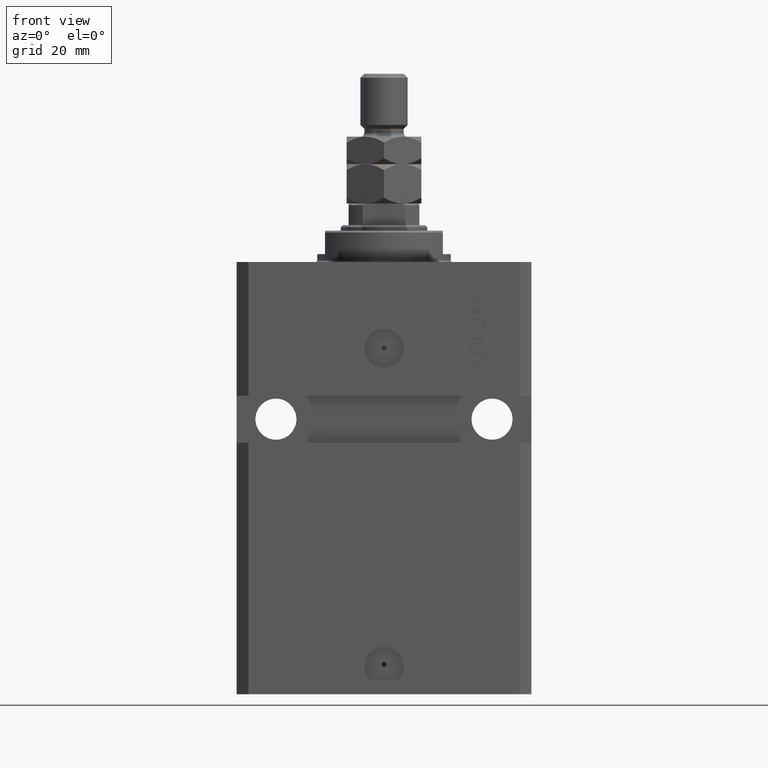
[diagram: clean part render]
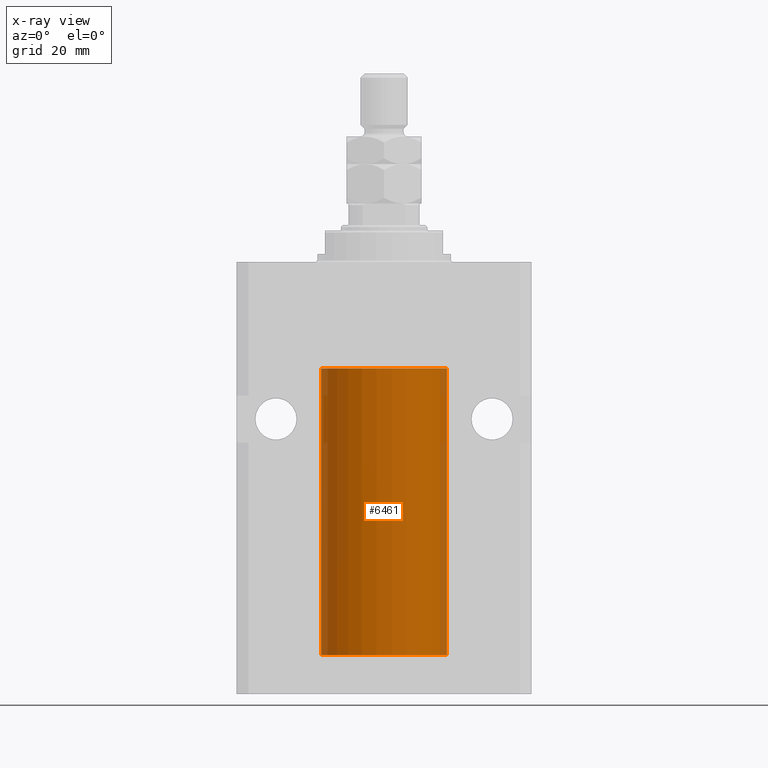
[diagram: x-ray — body ghosted, one internal face saturated and labeled with its STEP entity id]
A machine part, front view, then the same camera in x-ray: the body is ghosted and one INTERNAL B-rep face — a face not visible from any outside direction — is saturated and labeled: STEP entity #6461.
In plain terms, the highlighted cylindrical surface (partial cylindrical patch) has radius 16 mm, axis along (0, 0, 1).
Its self-contained STEP definition (entity closure, byte-faithful):
#46 = EDGE_CURVE ( 'NONE', #47399, #25627, #22998, .T. ) ;
#2684 = CARTESIAN_POINT ( 'NONE',  ( -15.99069874693027948, -0.5575440858643423425, -97.67382425011452085 ) ) ;
#3291 = CARTESIAN_POINT ( 'NONE',  ( 0.000000000000000000, 0.000000000000000000, -100.0999999999999943 ) ) ;
#4021 = CYLINDRICAL_SURFACE ( 'NONE', #41964, 16.00000000000000000 ) ;
#5810 = DIRECTION ( 'NONE',  ( 1.000000000000000000, 0.000000000000000000, 0.000000000000000000 ) ) ;
#6461 = ADVANCED_FACE ( 'NONE', ( #37538 ), #4021, .F. ) ;
#7030 = DIRECTION ( 'NONE',  ( -0.000000000000000000, -0.000000000000000000, 1.000000000000000000 ) ) ;
#7599 = AXIS2_PLACEMENT_3D ( 'NONE', #35433, #24185, #39091 ) ;
#8458 = VECTOR ( 'NONE', #23679, 1000.000000000000000 ) ;
#9234 = CARTESIAN_POINT ( 'NONE',  ( 0.000000000000000000, 0.000000000000000000, -100.0999999999999943 ) ) ;
#10053 = CARTESIAN_POINT ( 'NONE',  ( -16.00000000000000000, 1.959434878635765131E-15, -100.0999999999999943 ) ) ;
#11898 = VECTOR ( 'NONE', #7030, 1000.000000000000000 ) ;
#12224 = ORIENTED_EDGE ( 'NONE', *, *, #41195, .T. ) ;
#13898 = ORIENTED_EDGE ( 'NONE', *, *, #32432, .F. ) ;
#14476 = VERTEX_POINT ( 'NONE', #18851 ) ;
#15008 = DIRECTION ( 'NONE',  ( -0.000000000000000000, -0.000000000000000000, 1.000000000000000000 ) ) ;
#16174 = ORIENTED_EDGE ( 'NONE', *, *, #18263, .T. ) ;
#16875 = CARTESIAN_POINT ( 'NONE',  ( -15.99708815688950381, -0.3263115027449080552, -98.55740969198227219 ) ) ;
#16896 = VERTEX_POINT ( 'NONE', #22327 ) ;
#17829 = CARTESIAN_POINT ( 'NONE',  ( -15.98778295664474491, -0.6251369050462269872, -97.83564325457868449 ) ) ;
#18263 = EDGE_CURVE ( 'NONE', #45350, #27251, #22467, .T. ) ;
#18851 = CARTESIAN_POINT ( 'NONE',  ( -16.00000000000000000, 1.959434878635765131E-15, -100.0999999999999943 ) ) ;
#20242 = CARTESIAN_POINT ( 'NONE',  ( -16.00000000000000000, 1.959434878635765131E-15, -100.0999999999999943 ) ) ;
#20637 = AXIS2_PLACEMENT_3D ( 'NONE', #9234, #24192, #5810 ) ;
#21288 = CARTESIAN_POINT ( 'NONE',  ( -15.98779367741636648, -0.6248626626677354912, -98.16539631985041581 ) ) ;
#22327 = CARTESIAN_POINT ( 'NONE',  ( 16.00000000000000000, 0.000000000000000000, -100.0999999999999943 ) ) ;
#22412 = CARTESIAN_POINT ( 'NONE',  ( -16.00000000000000000, -1.303459030566954747E-14, -97.37500000000000000 ) ) ;
#22467 = CIRCLE ( 'NONE', #7599, 16.00000000000000000 ) ;
#22998 = B_SPLINE_CURVE_WITH_KNOTS ( 'NONE', 3,
 ( #36449, #24956, #16875, #28146, #21288, #17829, #2684, #39617, #31822, #25425 ),
 .UNSPECIFIED., .F., .F.,
 ( 4, 2, 2, 2, 4 ),
 ( 0.001954221322144760863, 0.002442665739568255709, 0.002931110156991750121, 0.003419554574415244966, 0.003907998991838739812 ),
 .UNSPECIFIED. ) ;
#23679 = DIRECTION ( 'NONE',  ( -0.000000000000000000, -0.000000000000000000, 1.000000000000000000 ) ) ;
#24185 = DIRECTION ( 'NONE',  ( 0.000000000000000000, 0.000000000000000000, 1.000000000000000000 ) ) ;
#24192 = DIRECTION ( 'NONE',  ( 0.000000000000000000, 0.000000000000000000, 1.000000000000000000 ) ) ;
#24956 = CARTESIAN_POINT ( 'NONE',  ( -16.00000000000000711, -0.1631344205875864539, -98.62500000000012790 ) ) ;
#25162 = CARTESIAN_POINT ( 'NONE',  ( 16.00000000000000000, 0.000000000000000000, -100.0999999999999943 ) ) ;
#25425 = CARTESIAN_POINT ( 'NONE',  ( -16.00000000000000000, -1.303459030566954747E-14, -97.37500000000000000 ) ) ;
#25627 = VERTEX_POINT ( 'NONE', #22412 ) ;
#27089 = LINE ( 'NONE', #20242, #8458 ) ;
#27251 = VERTEX_POINT ( 'NONE', #41653 ) ;
#28146 = CARTESIAN_POINT ( 'NONE',  ( -15.99071965633095793, -0.5569502390237154321, -98.32709508218682970 ) ) ;
#28551 = ORIENTED_EDGE ( 'NONE', *, *, #41564, .T. ) ;
#28661 = LINE ( 'NONE', #10053, #34278 ) ;
#29216 = CIRCLE ( 'NONE', #20637, 16.00000000000000000 ) ;
#31822 = CARTESIAN_POINT ( 'NONE',  ( -16.00000000000000000, -0.1651602165840288794, -97.37500000000001421 ) ) ;
#32432 = EDGE_CURVE ( 'NONE', #16896, #27251, #40554, .T. ) ;
#32973 = CARTESIAN_POINT ( 'NONE',  ( -16.00000000000000000, 1.959434878635765131E-15, -27.10000000000000142 ) ) ;
#34278 = VECTOR ( 'NONE', #47492, 1000.000000000000000 ) ;
#34400 = EDGE_LOOP ( 'NONE', ( #41655, #28551, #47097, #12224, #16174, #13898 ) ) ;
#35433 = CARTESIAN_POINT ( 'NONE',  ( 0.000000000000000000, 0.000000000000000000, -27.10000000000000142 ) ) ;
#36449 = CARTESIAN_POINT ( 'NONE',  ( -16.00000000000013145, 3.685127046438747128E-13, -98.62500000000343903 ) ) ;
#37538 = FACE_OUTER_BOUND ( 'NONE', #34400, .T. ) ;
#38020 = CARTESIAN_POINT ( 'NONE',  ( -16.00000000000013145, 3.685127046438747128E-13, -98.62500000000343903 ) ) ;
#39091 = DIRECTION ( 'NONE',  ( 1.000000000000000000, 0.000000000000000000, 0.000000000000000000 ) ) ;
#39617 = CARTESIAN_POINT ( 'NONE',  ( -15.99707459521409625, -0.3269651631532106140, -97.44291848928558863 ) ) ;
#40180 = EDGE_CURVE ( 'NONE', #14476, #16896, #29216, .T. ) ;
#40554 = LINE ( 'NONE', #25162, #11898 ) ;
#41195 = EDGE_CURVE ( 'NONE', #25627, #45350, #27089, .T. ) ;
#41564 = EDGE_CURVE ( 'NONE', #14476, #47399, #28661, .T. ) ;
#41653 = CARTESIAN_POINT ( 'NONE',  ( 16.00000000000000000, 0.000000000000000000, -27.10000000000000142 ) ) ;
#41655 = ORIENTED_EDGE ( 'NONE', *, *, #40180, .F. ) ;
#41964 = AXIS2_PLACEMENT_3D ( 'NONE', #3291, #15008, #48059 ) ;
#45350 = VERTEX_POINT ( 'NONE', #32973 ) ;
#47097 = ORIENTED_EDGE ( 'NONE', *, *, #46, .T. ) ;
#47399 = VERTEX_POINT ( 'NONE', #38020 ) ;
#47492 = DIRECTION ( 'NONE',  ( -0.000000000000000000, -0.000000000000000000, 1.000000000000000000 ) ) ;
#48059 = DIRECTION ( 'NONE',  ( 1.000000000000000000, 0.000000000000000000, 0.000000000000000000 ) ) ;